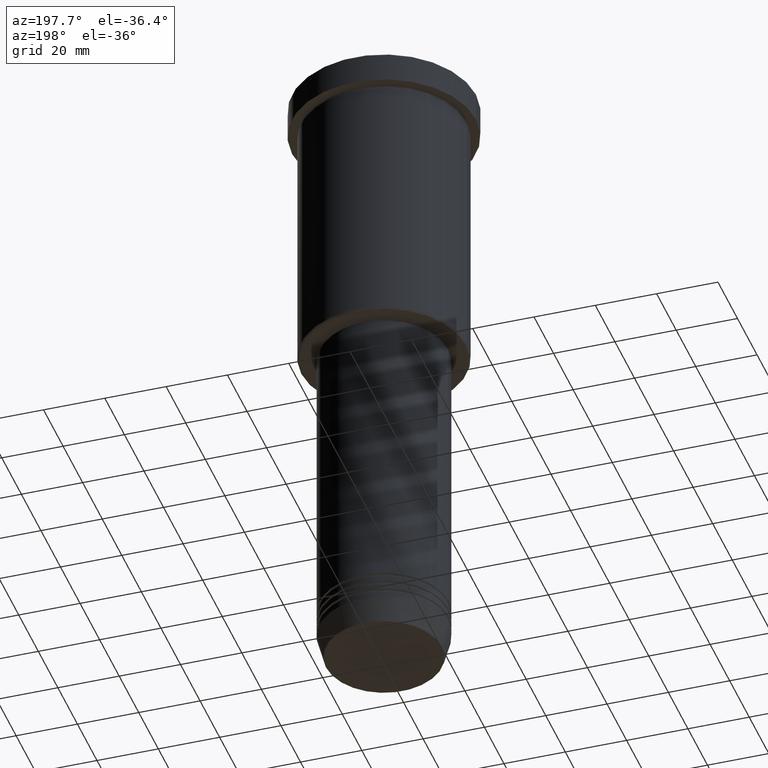
[diagram: clean part render]
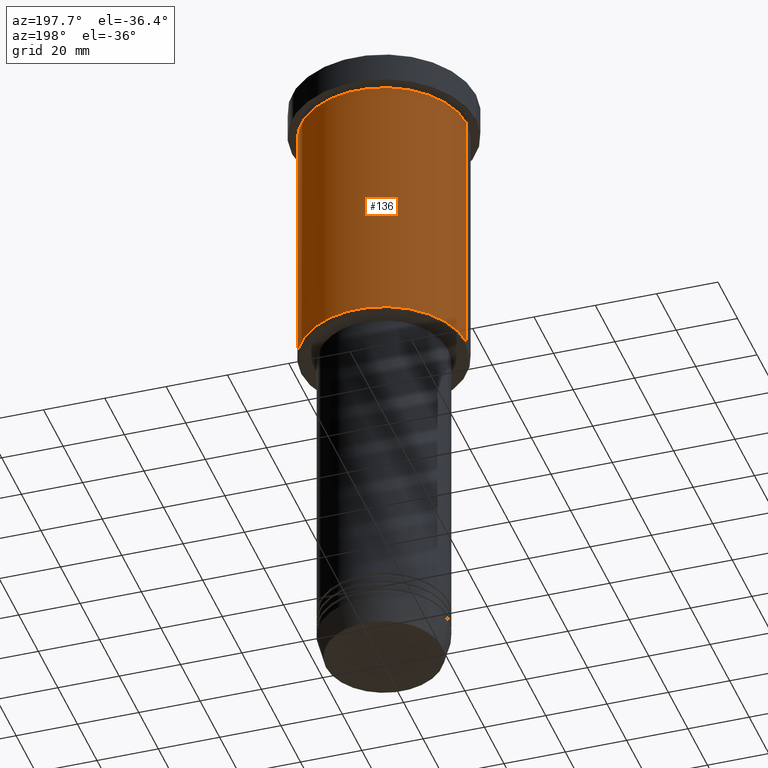
[diagram: same view with one face highlighted and labeled with its STEP entity id]
A machine part, auxiliary view. The second image highlights one B-rep face of the part: STEP entity #136.
In plain terms, the highlighted cylindrical surface (partial cylindrical patch) has radius 27 mm, axis along (-0, -0, 1).
Its self-contained STEP definition (entity closure, byte-faithful):
#10 = AXIS2_PLACEMENT_3D ( 'NONE', #447, #976, #797 ) ;
#86 = CARTESIAN_POINT ( 'NONE',  ( 0.000000000000000000, 0.000000000000000000, -10.99999999999999289 ) ) ;
#88 = FACE_OUTER_BOUND ( 'NONE', #563, .T. ) ;
#94 = CYLINDRICAL_SURFACE ( 'NONE', #10, 27.00000000000000355 ) ;
#101 = CARTESIAN_POINT ( 'NONE',  ( -27.00000000000000355, 3.306546357697854128E-15, -95.49999999999990052 ) ) ;
#123 = CARTESIAN_POINT ( 'NONE',  ( -27.00000000000000355, 3.306546357697854128E-15, -10.99999999999999289 ) ) ;
#129 = ORIENTED_EDGE ( 'NONE', *, *, #211, .T. ) ;
#136 = ADVANCED_FACE ( 'NONE', ( #88 ), #94, .T. ) ;
#165 = ORIENTED_EDGE ( 'NONE', *, *, #894, .T. ) ;
#171 = AXIS2_PLACEMENT_3D ( 'NONE', #86, #730, #176 ) ;
#176 = DIRECTION ( 'NONE',  ( 1.000000000000000000, 0.000000000000000000, 0.000000000000000000 ) ) ;
#188 = AXIS2_PLACEMENT_3D ( 'NONE', #189, #1030, #314 ) ;
#189 = CARTESIAN_POINT ( 'NONE',  ( 0.000000000000000000, 0.000000000000000000, -95.49999999999990052 ) ) ;
#211 = EDGE_CURVE ( 'NONE', #321, #767, #532, .T. ) ;
#259 = ORIENTED_EDGE ( 'NONE', *, *, #817, .F. ) ;
#314 = DIRECTION ( 'NONE',  ( -1.000000000000000000, 0.000000000000000000, 0.000000000000000000 ) ) ;
#319 = CARTESIAN_POINT ( 'NONE',  ( 27.00000000000000355, 0.000000000000000000, -10.99999999999999289 ) ) ;
#321 = VERTEX_POINT ( 'NONE', #420 ) ;
#420 = CARTESIAN_POINT ( 'NONE',  ( 27.00000000000000355, 0.000000000000000000, -95.49999999999990052 ) ) ;
#447 = CARTESIAN_POINT ( 'NONE',  ( 0.000000000000000000, 0.000000000000000000, 0.000000000000000000 ) ) ;
#499 = DIRECTION ( 'NONE',  ( -0.000000000000000000, -0.000000000000000000, 1.000000000000000000 ) ) ;
#503 = EDGE_CURVE ( 'NONE', #919, #1110, #690, .T. ) ;
#532 = CIRCLE ( 'NONE', #188, 27.00000000000000355 ) ;
#563 = EDGE_LOOP ( 'NONE', ( #129, #165, #1049, #259 ) ) ;
#588 = VECTOR ( 'NONE', #499, 1000.000000000000000 ) ;
#606 = VECTOR ( 'NONE', #889, 1000.000000000000000 ) ;
#690 = CIRCLE ( 'NONE', #171, 27.00000000000000355 ) ;
#730 = DIRECTION ( 'NONE',  ( -0.000000000000000000, -0.000000000000000000, 1.000000000000000000 ) ) ;
#767 = VERTEX_POINT ( 'NONE', #101 ) ;
#797 = DIRECTION ( 'NONE',  ( 1.000000000000000000, 0.000000000000000000, 0.000000000000000000 ) ) ;
#799 = CARTESIAN_POINT ( 'NONE',  ( -27.00000000000000355, 3.306546357697854128E-15, 0.000000000000000000 ) ) ;
#817 = EDGE_CURVE ( 'NONE', #321, #919, #973, .T. ) ;
#884 = CARTESIAN_POINT ( 'NONE',  ( 27.00000000000000355, 0.000000000000000000, 0.000000000000000000 ) ) ;
#889 = DIRECTION ( 'NONE',  ( -0.000000000000000000, -0.000000000000000000, 1.000000000000000000 ) ) ;
#894 = EDGE_CURVE ( 'NONE', #767, #1110, #1139, .T. ) ;
#919 = VERTEX_POINT ( 'NONE', #319 ) ;
#973 = LINE ( 'NONE', #884, #588 ) ;
#976 = DIRECTION ( 'NONE',  ( -0.000000000000000000, -0.000000000000000000, 1.000000000000000000 ) ) ;
#1030 = DIRECTION ( 'NONE',  ( -0.000000000000000000, -0.000000000000000000, 1.000000000000000000 ) ) ;
#1049 = ORIENTED_EDGE ( 'NONE', *, *, #503, .F. ) ;
#1110 = VERTEX_POINT ( 'NONE', #123 ) ;
#1139 = LINE ( 'NONE', #799, #606 ) ;